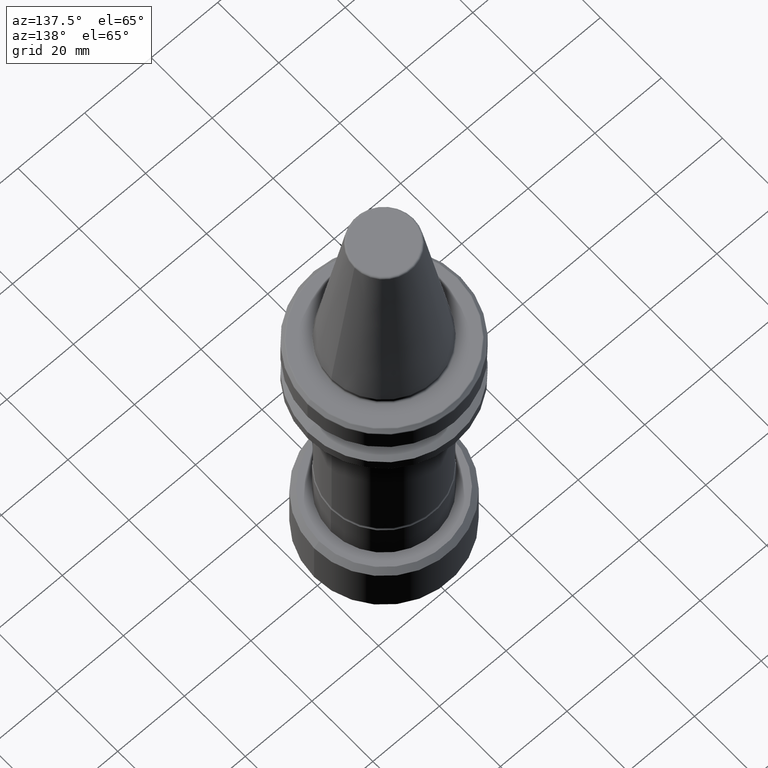
[diagram: clean part render]
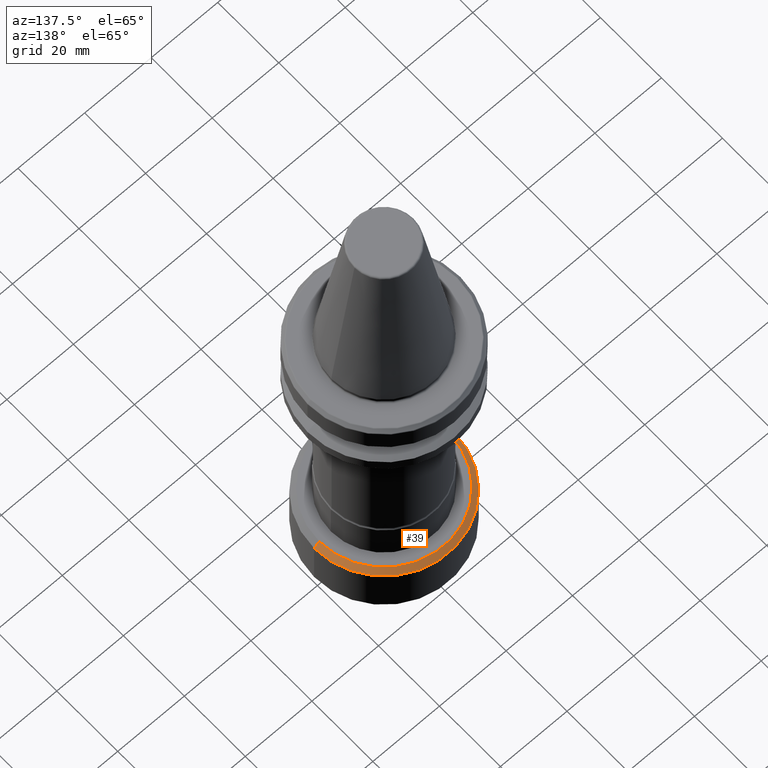
[diagram: same view with one face highlighted and labeled with its STEP entity id]
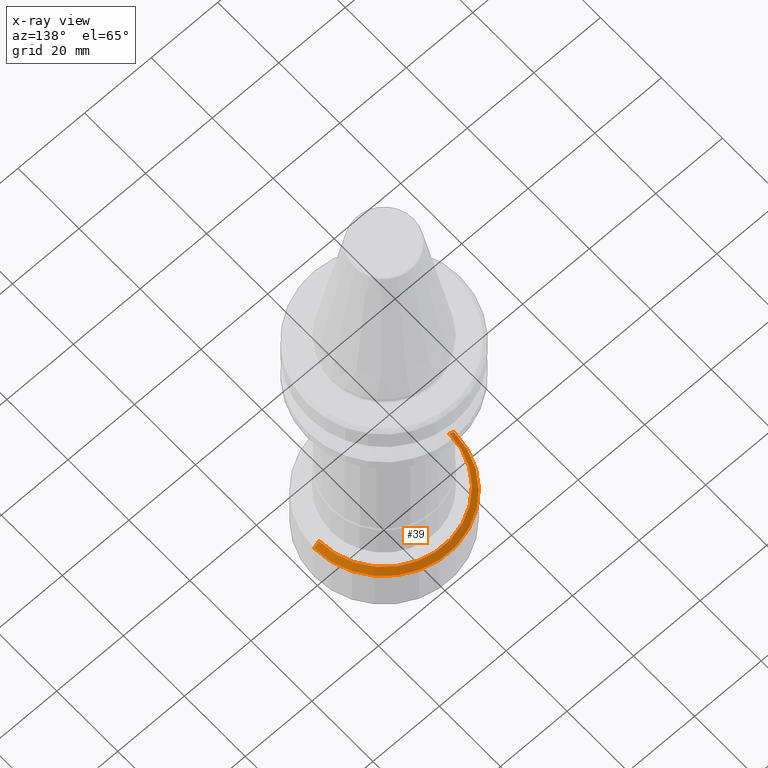
[diagram: x-ray of the same camera — body ghosted, the highlighted face saturated]
A machine part, auxiliary view. The second image highlights one B-rep face of the part: STEP entity #39.
The next image is the same camera in x-ray: the body ghosted, the highlighted face saturated — about 2% of this face is hidden behind the body in this view.
In plain terms, the highlighted conical surface has half-angle 45 deg.
Its self-contained STEP definition (entity closure, byte-faithful):
#39 = ADVANCED_FACE ( 'NONE', ( #849 ), #781, .T. ) ;
#68 = EDGE_CURVE ( 'NONE', #191, #324, #177, .T. ) ;
#70 = DIRECTION ( 'NONE',  ( -0.7071067811865474600, 0.0000000000000000000, -0.7071067811865475700 ) ) ;
#177 = LINE ( 'NONE', #550, #1048 ) ;
#188 = VERTEX_POINT ( 'NONE', #216 ) ;
#191 = VERTEX_POINT ( 'NONE', #948 ) ;
#216 = CARTESIAN_POINT ( 'NONE',  ( -19.49999999999998900, 0.0000000000000000000, -79.99824683744778000 ) ) ;
#303 = ORIENTED_EDGE ( 'NONE', *, *, #1031, .F. ) ;
#315 = CARTESIAN_POINT ( 'NONE',  ( 0.0000000000000000000, 0.0000000000000000000, -81.49824683744779500 ) ) ;
#324 = VERTEX_POINT ( 'NONE', #941 ) ;
#351 = DIRECTION ( 'NONE',  ( -0.0000000000000000000, -0.0000000000000000000, 1.000000000000000000 ) ) ;
#352 = EDGE_LOOP ( 'NONE', ( #303, #613, #823, #419 ) ) ;
#419 = ORIENTED_EDGE ( 'NONE', *, *, #1284, .F. ) ;
#423 = DIRECTION ( 'NONE',  ( 1.000000000000000000, 0.0000000000000000000, 0.0000000000000000000 ) ) ;
#437 = DIRECTION ( 'NONE',  ( 0.7071067811865474600, 8.659560562354931600E-017, -0.7071067811865475700 ) ) ;
#550 = CARTESIAN_POINT ( 'NONE',  ( 20.99999999999998900, 2.571758278209440500E-015, -81.49824683744779500 ) ) ;
#598 = AXIS2_PLACEMENT_3D ( 'NONE', #913, #1247, #1134 ) ;
#613 = ORIENTED_EDGE ( 'NONE', *, *, #68, .T. ) ;
#638 = LINE ( 'NONE', #1397, #889 ) ;
#722 = AXIS2_PLACEMENT_3D ( 'NONE', #315, #1100, #423 ) ;
#781 = CONICAL_SURFACE ( 'NONE', #598, 20.99999999999998900, 0.7853981633974482800 ) ;
#823 = ORIENTED_EDGE ( 'NONE', *, *, #1058, .T. ) ;
#849 = FACE_OUTER_BOUND ( 'NONE', #352, .T. ) ;
#889 = VECTOR ( 'NONE', #70, 1000.000000000000000 ) ;
#904 = CIRCLE ( 'NONE', #997, 19.49999999999998900 ) ;
#913 = CARTESIAN_POINT ( 'NONE',  ( 0.0000000000000000000, 0.0000000000000000000, -81.49824683744779500 ) ) ;
#941 = CARTESIAN_POINT ( 'NONE',  ( 20.99999999999998900, 0.0000000000000000000, -81.49824683744779500 ) ) ;
#948 = CARTESIAN_POINT ( 'NONE',  ( 19.49999999999998900, 2.479909768273389100E-015, -79.99824683744778000 ) ) ;
#997 = AXIS2_PLACEMENT_3D ( 'NONE', #1026, #351, #1136 ) ;
#1026 = CARTESIAN_POINT ( 'NONE',  ( 0.0000000000000000000, 0.0000000000000000000, -79.99824683744778000 ) ) ;
#1031 = EDGE_CURVE ( 'NONE', #191, #188, #904, .T. ) ;
#1048 = VECTOR ( 'NONE', #437, 1000.000000000000000 ) ;
#1058 = EDGE_CURVE ( 'NONE', #324, #1261, #1418, .T. ) ;
#1100 = DIRECTION ( 'NONE',  ( -0.0000000000000000000, -0.0000000000000000000, 1.000000000000000000 ) ) ;
#1134 = DIRECTION ( 'NONE',  ( -1.000000000000000000, 0.0000000000000000000, 0.0000000000000000000 ) ) ;
#1136 = DIRECTION ( 'NONE',  ( 1.000000000000000000, 0.0000000000000000000, 0.0000000000000000000 ) ) ;
#1247 = DIRECTION ( 'NONE',  ( 0.0000000000000000000, 0.0000000000000000000, -1.000000000000000000 ) ) ;
#1261 = VERTEX_POINT ( 'NONE', #1408 ) ;
#1284 = EDGE_CURVE ( 'NONE', #188, #1261, #638, .T. ) ;
#1397 = CARTESIAN_POINT ( 'NONE',  ( -20.99999999999998900, 0.0000000000000000000, -81.49824683744779500 ) ) ;
#1408 = CARTESIAN_POINT ( 'NONE',  ( -20.99999999999998900, 2.571758278209440500E-015, -81.49824683744779500 ) ) ;
#1418 = CIRCLE ( 'NONE', #722, 20.99999999999998900 ) ;